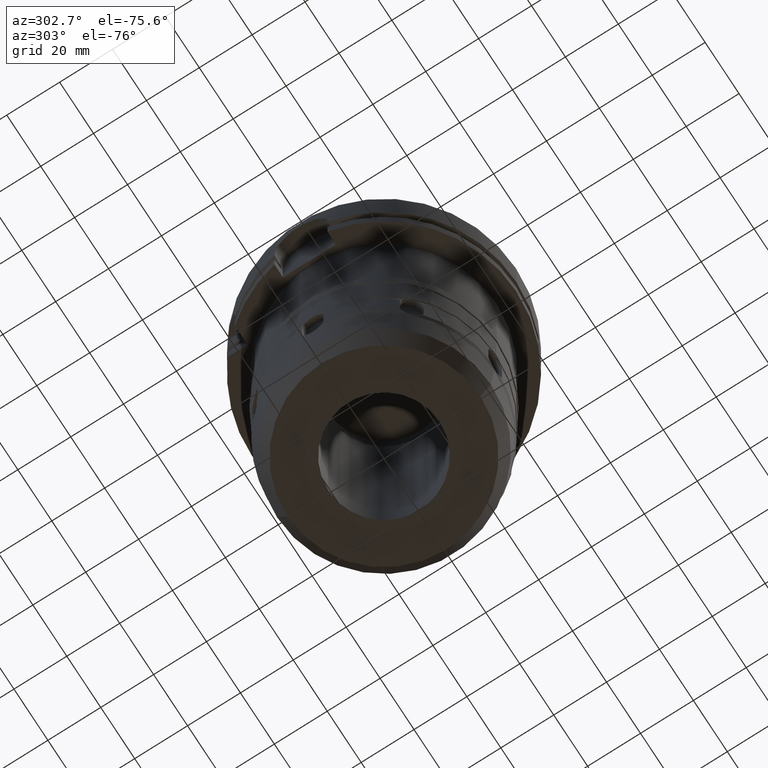
[diagram: clean part render]
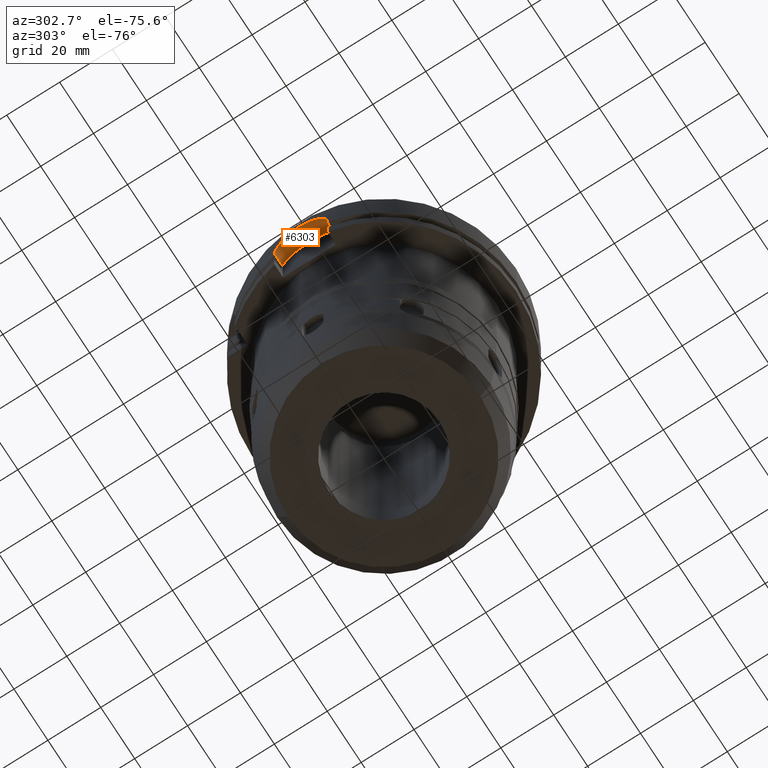
[diagram: same view with one face highlighted and labeled with its STEP entity id]
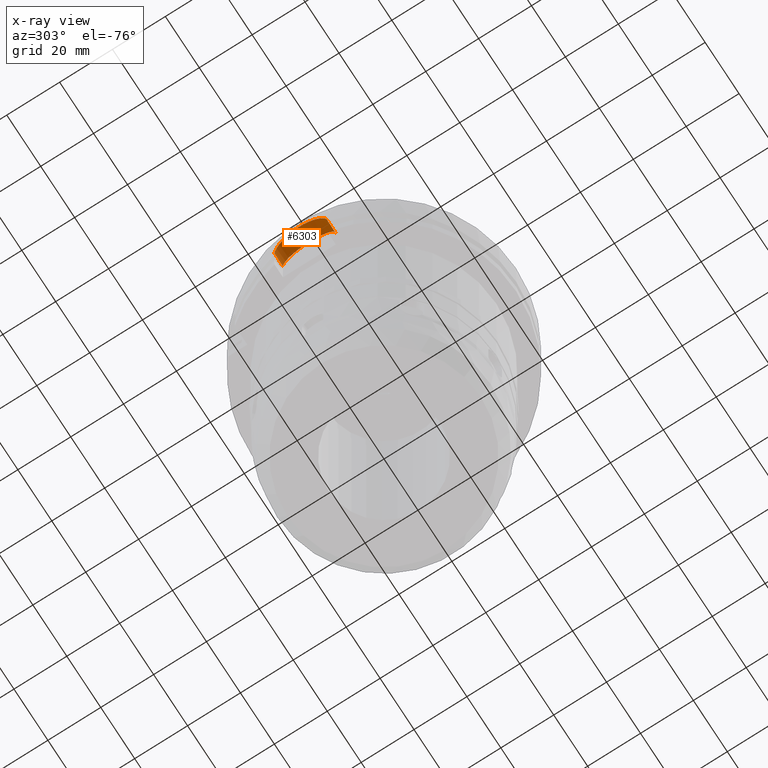
[diagram: x-ray of the same camera — body ghosted, the highlighted face saturated]
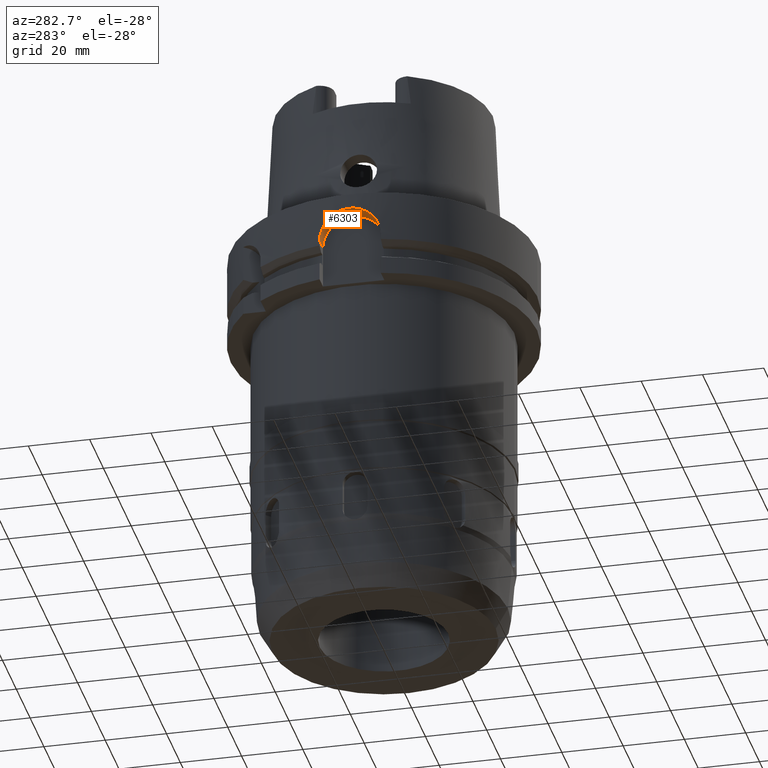
[diagram: same view with one face highlighted and labeled with its STEP entity id]
A machine part, auxiliary view. The second image highlights one B-rep face of the part: STEP entity #6303.
The next image is the same camera in x-ray: the body ghosted, the highlighted face saturated — about 0% of this face is hidden behind the body in this view.
A second angle (auxiliary view) of the same face is appended — the face is thin or edge-on in the first view.
In plain terms, the highlighted cylindrical surface (edge-blend (fillet) strip) has radius 10 mm, axis along (1, 0, 0).
Its self-contained STEP definition (entity closure, byte-faithful):
#2764=CARTESIAN_POINT('',(-4.4E1,0.E0,-1.5E1));
#2765=DIRECTION('',(1.E0,0.E0,0.E0));
#2766=DIRECTION('',(0.E0,1.E0,0.E0));
#2767=AXIS2_PLACEMENT_3D('',#2764,#2765,#2766);
#2772=CARTESIAN_POINT('',(-4.4E1,0.E0,-1.5E1));
#2773=DIRECTION('',(1.E0,0.E0,0.E0));
#2774=DIRECTION('',(0.E0,0.E0,1.E0));
#2775=AXIS2_PLACEMENT_3D('',#2772,#2773,#2774);
#3336=CARTESIAN_POINT('',(-4.898979485566E1,1.E1,-1.5E1));
#3337=CARTESIAN_POINT('',(-4.898979485566E1,1.E1,-1.426108339054E1));
#3338=CARTESIAN_POINT('',(-4.902380397178E1,9.835573181094E0,
-1.277773796762E1));
#3339=CARTESIAN_POINT('',(-4.916882506048E1,9.096390976148E0,
-1.064602762518E1));
#3340=CARTESIAN_POINT('',(-4.938004913442E1,7.892536922877E0,
-8.720777334134E0));
#3341=CARTESIAN_POINT('',(-4.961472990510E1,6.281193322607E0,
-7.108977901553E0));
#3342=CARTESIAN_POINT('',(-4.982397989539E1,4.355986646179E0,
-5.904662998031E0));
#3343=CARTESIAN_POINT('',(-4.996651786456E1,2.226278022805E0,
-5.165424488103E0));
#3344=CARTESIAN_POINT('',(-5.001677347920E1,-1.478587462774E-3,
-4.917124513237E0));
#3345=CARTESIAN_POINT('',(-4.996638810610E1,-2.229127438261E0,
-5.166078098978E0));
#3346=CARTESIAN_POINT('',(-4.982375143674E1,-4.358568224987E0,
-5.905888858995E0));
#3347=CARTESIAN_POINT('',(-4.961443094386E1,-6.283534592861E0,
-7.110860296475E0));
#3348=CARTESIAN_POINT('',(-4.937976574419E1,-7.894254858082E0,
-8.722905111690E0));
#3349=CARTESIAN_POINT('',(-4.916856876748E1,-9.097827969051E0,
-1.064902048529E1));
#3350=CARTESIAN_POINT('',(-4.902370122882E1,-9.835971298666E0,
-1.278006468368E1));
#3351=CARTESIAN_POINT('',(-4.898979485566E1,-1.E1,-1.426200339765E1));
#3352=CARTESIAN_POINT('',(-4.898979485566E1,-1.E1,-1.5E1));
#3357=DIRECTION('',(1.E0,4.627973610178E-14,0.E0));
#3358=VECTOR('',#3357,4.989794855661E0);
#3359=CARTESIAN_POINT('',(-4.898979485566E1,-1.E1,-1.5E1));
#3360=LINE('',#3359,#3358);
#3364=DIRECTION('',(-1.E0,4.627973610178E-14,0.E0));
#3365=VECTOR('',#3364,4.989794855661E0);
#3366=CARTESIAN_POINT('',(-4.4E1,1.E1,-1.5E1));
#3367=LINE('',#3366,#3365);
#3921=CARTESIAN_POINT('',(-4.4E1,-1.E1,-1.5E1));
#3922=VERTEX_POINT('',#3921);
#3923=CARTESIAN_POINT('',(-4.898979485566E1,-1.E1,-1.5E1));
#3924=VERTEX_POINT('',#3923);
#3934=CARTESIAN_POINT('',(-4.4E1,1.E1,-1.5E1));
#3935=VERTEX_POINT('',#3934);
#3936=CARTESIAN_POINT('',(-4.4E1,0.E0,-5.E0));
#3937=VERTEX_POINT('',#3936);
#3946=CARTESIAN_POINT('',(-4.898979485566E1,1.E1,-1.5E1));
#3947=VERTEX_POINT('',#3946);
#6291=CARTESIAN_POINT('',(-5.E1,0.E0,-1.5E1));
#6292=DIRECTION('',(1.E0,0.E0,0.E0));
#6293=DIRECTION('',(0.E0,0.E0,1.E0));
#6294=AXIS2_PLACEMENT_3D('',#6291,#6292,#6293);
#6295=CYLINDRICAL_SURFACE('',#6294,1.E1);
#6296=ORIENTED_EDGE('',*,*,#6049,.T.);
#6297=ORIENTED_EDGE('',*,*,#5921,.T.);
#6298=ORIENTED_EDGE('',*,*,#5949,.F.);
#6299=ORIENTED_EDGE('',*,*,#5947,.F.);
#6300=ORIENTED_EDGE('',*,*,#5975,.T.);
#6301=EDGE_LOOP('',(#6296,#6297,#6298,#6299,#6300));
#6302=FACE_OUTER_BOUND('',#6301,.F.);
#2768=CIRCLE('',#2767,1.E1);
#2776=CIRCLE('',#2775,1.E1);
#3353=B_SPLINE_CURVE_WITH_KNOTS('',3,(#3336,#3337,#3338,#3339,#3340,#3341,#3342,
#3343,#3344,#3345,#3346,#3347,#3348,#3349,#3350,#3351,#3352),.UNSPECIFIED.,.F.,
.F.,(4,1,1,1,1,1,1,1,1,1,1,1,1,1,4),(0.E0,7.142857142857E-2,1.428571428571E-1,
2.142857142857E-1,2.857142857143E-1,3.571428571429E-1,4.285714285714E-1,5.E-1,
5.714285714286E-1,6.428571428571E-1,7.142857142857E-1,7.857142857143E-1,
8.571428571429E-1,9.285714285714E-1,1.E0),.UNSPECIFIED.);
#5921=EDGE_CURVE('',#3924,#3922,#3360,.T.);
#5947=EDGE_CURVE('',#3935,#3937,#2768,.T.);
#5949=EDGE_CURVE('',#3937,#3922,#2776,.T.);
#5975=EDGE_CURVE('',#3935,#3947,#3367,.T.);
#6049=EDGE_CURVE('',#3947,#3924,#3353,.T.);
#6303=ADVANCED_FACE('',(#6302),#6295,.F.);